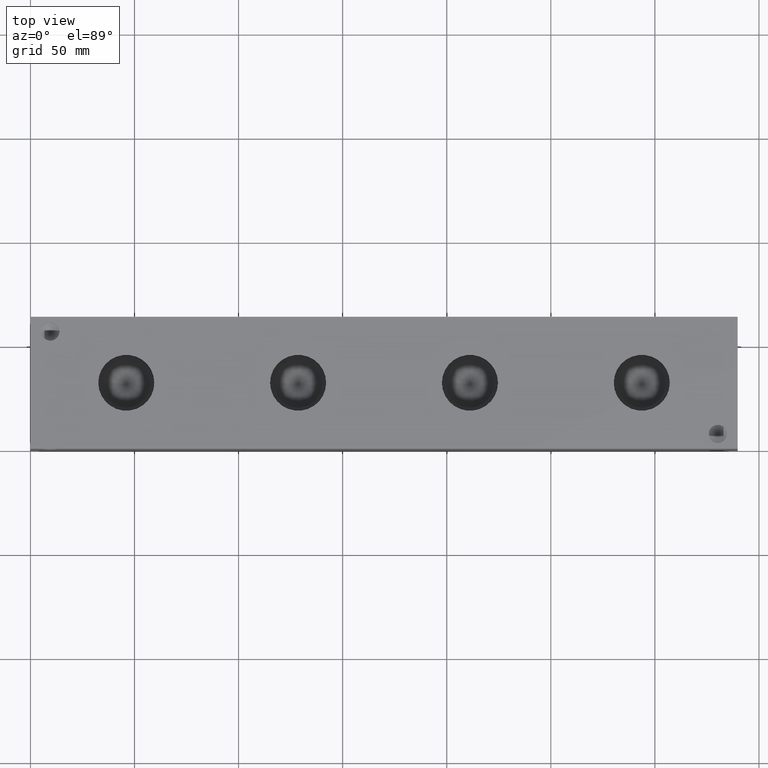
[diagram: clean part render]
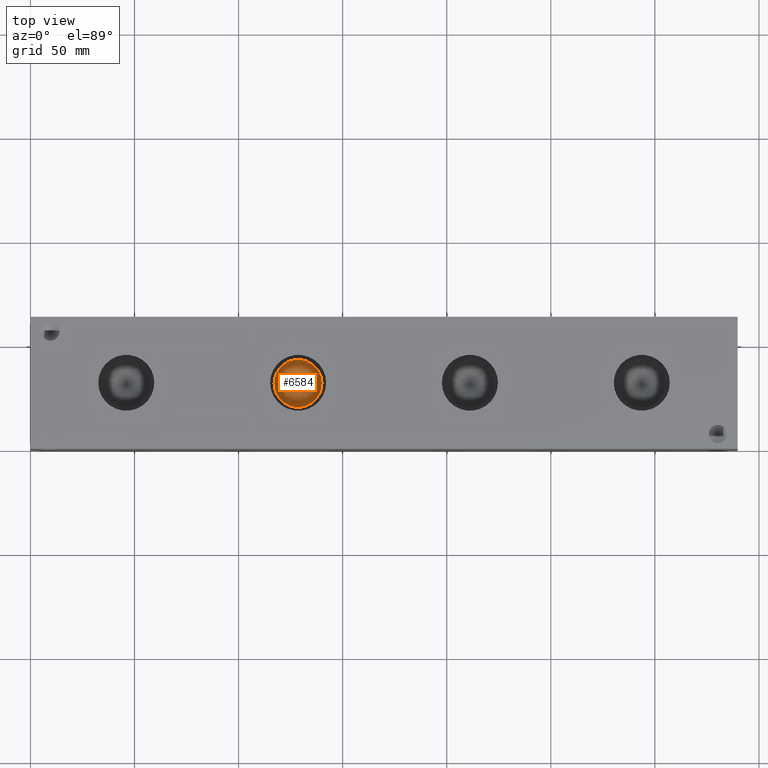
[diagram: same view with one face highlighted and labeled with its STEP entity id]
A machine part, top view. The second image highlights one B-rep face of the part: STEP entity #6584.
In plain terms, the highlighted conical surface has half-angle 60 deg.
Its self-contained STEP definition (entity closure, byte-faithful):
#36=CONICAL_SURFACE('',#6889,5.7531,1.0471975511966);
#74=CIRCLE('',#6890,11.5062);
#75=CIRCLE('',#6891,11.5062);
#684=FACE_OUTER_BOUND('',#1053,.T.);
#1053=EDGE_LOOP('',(#5807,#5808,#5809,#5810));
#1750=LINE('',#10990,#2437);
#2437=VECTOR('',#8146,5.7531);
#3187=VERTEX_POINT('',#10986);
#3188=VERTEX_POINT('',#10987);
#3189=VERTEX_POINT('',#10989);
#4072=EDGE_CURVE('',#3187,#3188,#74,.T.);
#4073=EDGE_CURVE('',#3188,#3189,#1750,.T.);
#4074=EDGE_CURVE('',#3188,#3187,#75,.T.);
#5807=ORIENTED_EDGE('',*,*,#4072,.T.);
#5808=ORIENTED_EDGE('',*,*,#4073,.T.);
#5809=ORIENTED_EDGE('',*,*,#4073,.F.);
#5810=ORIENTED_EDGE('',*,*,#4074,.T.);
#6584=ADVANCED_FACE('',(#684),#36,.F.);
#6889=AXIS2_PLACEMENT_3D('',#10985,#8142,#8143);
#6890=AXIS2_PLACEMENT_3D('',#10988,#8144,#8145);
#6891=AXIS2_PLACEMENT_3D('',#10991,#8147,#8148);
#8142=DIRECTION('center_axis',(0.,0.,1.));
#8143=DIRECTION('ref_axis',(1.,0.,0.));
#8144=DIRECTION('center_axis',(0.,0.,1.));
#8145=DIRECTION('ref_axis',(1.,0.,0.));
#8146=DIRECTION('',(0.866025403784439,1.06057523872491E-16,-0.5));
#8147=DIRECTION('center_axis',(0.,0.,1.));
#8148=DIRECTION('ref_axis',(1.,0.,0.));
#10985=CARTESIAN_POINT('Origin',(128.5748,31.75,43.6645361663252));
#10986=CARTESIAN_POINT('',(140.081,31.75,46.98609));
#10987=CARTESIAN_POINT('',(117.0686,31.75,46.98609));
#10988=CARTESIAN_POINT('Origin',(128.5748,31.75,46.98609));
#10989=CARTESIAN_POINT('',(128.5748,31.75,40.3429823326503));
#10990=CARTESIAN_POINT('',(122.8217,31.75,43.6645361663252));
#10991=CARTESIAN_POINT('Origin',(128.5748,31.75,46.98609));